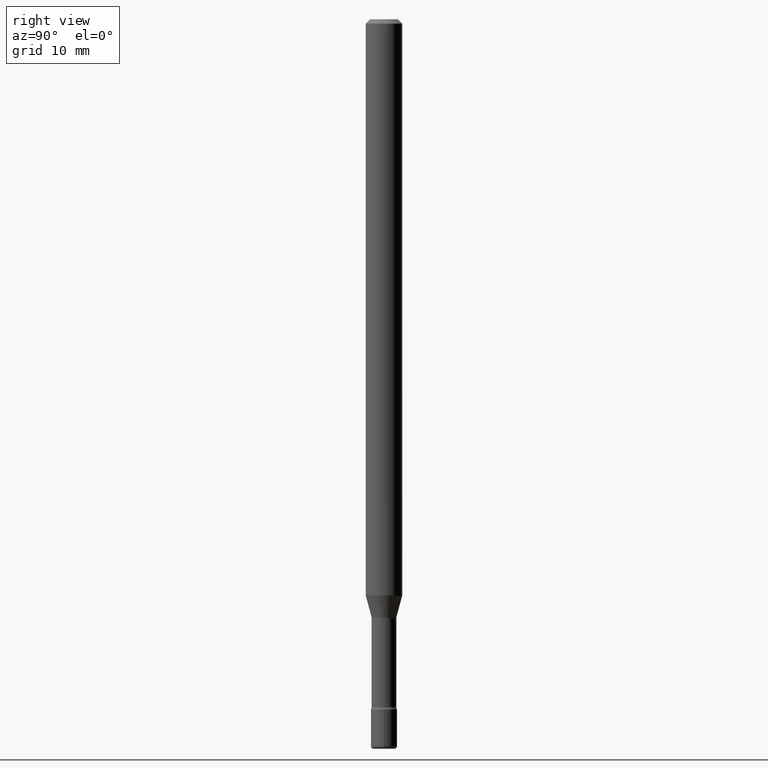
[diagram: clean part render]
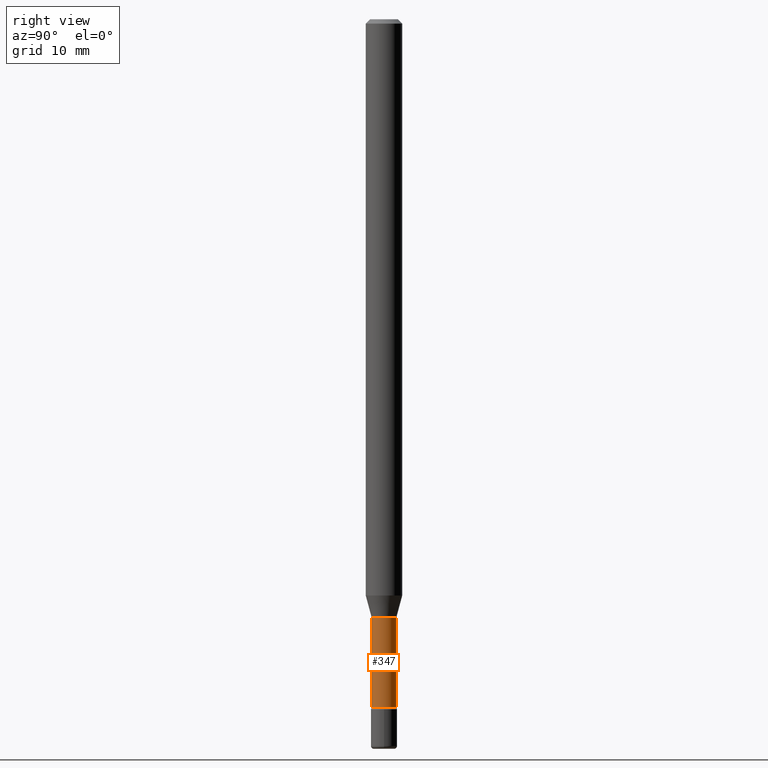
[diagram: same view with one face highlighted and labeled with its STEP entity id]
A machine part, right view. The second image highlights one B-rep face of the part: STEP entity #347.
In plain terms, the highlighted cylindrical surface (edge-blend (fillet) strip) has radius 1.0744 mm, axis along (-0, 0, 1).
Its self-contained STEP definition (entity closure, byte-faithful):
#6 = EDGE_CURVE ( 'NONE', #409, #531, #223, .T. ) ;
#20 = VECTOR ( 'NONE', #346, 39.37007874015748143 ) ;
#40 = VECTOR ( 'NONE', #274, 39.37007874015748143 ) ;
#53 = AXIS2_PLACEMENT_3D ( 'NONE', #280, #101, #501 ) ;
#58 = CYLINDRICAL_SURFACE ( 'NONE', #53, 0.04229999999999999732 ) ;
#73 = CARTESIAN_POINT ( 'NONE',  ( -2.953793212660789115E-16, -0.04230000000000716520, -2.051974787463811012 ) ) ;
#88 = CARTESIAN_POINT ( 'NONE',  ( -2.953793212661290535E-16, -0.04229999999999999732, 6.257699263891009512E-16 ) ) ;
#101 = DIRECTION ( 'NONE',  ( -2.445355446703953584E-29, 3.491643676072220337E-15, 1.000000000000000000 ) ) ;
#114 = EDGE_CURVE ( 'NONE', #256, #531, #395, .T. ) ;
#116 = DIRECTION ( 'NONE',  ( -6.982962677686266711E-15, -1.000000000000000000, 6.458269488567998169E-15 ) ) ;
#146 = FACE_OUTER_BOUND ( 'NONE', #406, .T. ) ;
#152 = ORIENTED_EDGE ( 'NONE', *, *, #6, .T. ) ;
#223 = LINE ( 'NONE', #407, #40 ) ;
#229 = DIRECTION ( 'NONE',  ( -2.445355446703953584E-29, 3.491643676072220337E-15, 1.000000000000000000 ) ) ;
#249 = LINE ( 'NONE', #88, #20 ) ;
#255 = CARTESIAN_POINT ( 'NONE',  ( 3.005595772265800451E-16, 0.04229999999999283639, -2.051974787463811456 ) ) ;
#256 = VERTEX_POINT ( 'NONE', #73 ) ;
#258 = EDGE_CURVE ( 'NONE', #499, #256, #249, .T. ) ;
#261 = AXIS2_PLACEMENT_3D ( 'NONE', #534, #229, #116 ) ;
#265 = ORIENTED_EDGE ( 'NONE', *, *, #258, .F. ) ;
#274 = DIRECTION ( 'NONE',  ( -2.445355446703953584E-29, 3.491643676072220337E-15, 1.000000000000000000 ) ) ;
#280 = CARTESIAN_POINT ( 'NONE',  ( -1.169113584055446105E-44, 1.669184350826100908E-30, 4.780733988912460139E-16 ) ) ;
#282 = ORIENTED_EDGE ( 'NONE', *, *, #355, .T. ) ;
#317 = AXIS2_PLACEMENT_3D ( 'NONE', #465, #337, #415 ) ;
#337 = DIRECTION ( 'NONE',  ( -2.445355446703953584E-29, 3.491643676072220337E-15, 1.000000000000000000 ) ) ;
#346 = DIRECTION ( 'NONE',  ( -2.445355446703953584E-29, 3.491643676072220337E-15, 1.000000000000000000 ) ) ;
#347 = ADVANCED_FACE ( 'NONE', ( #146 ), #58, .T. ) ;
#355 = EDGE_CURVE ( 'NONE', #499, #409, #571, .T. ) ;
#360 = CARTESIAN_POINT ( 'NONE',  ( 3.101519041593414751E-16, 0.04229999999999176780, -2.356414547187247521 ) ) ;
#395 = CIRCLE ( 'NONE', #317, 0.04229999999999999732 ) ;
#406 = EDGE_LOOP ( 'NONE', ( #282, #152, #533, #265 ) ) ;
#407 = CARTESIAN_POINT ( 'NONE',  ( 3.005595772265223103E-16, 0.04229999999999999732, 3.303768713933911753E-16 ) ) ;
#409 = VERTEX_POINT ( 'NONE', #360 ) ;
#415 = DIRECTION ( 'NONE',  ( -6.982962677686266711E-15, -1.000000000000000000, 6.458269488567998169E-15 ) ) ;
#465 = CARTESIAN_POINT ( 'NONE',  ( 5.017807723023819090E-29, -7.164764790107654286E-15, -2.051974787463811456 ) ) ;
#486 = CARTESIAN_POINT ( 'NONE',  ( -2.953793212660714173E-16, -0.04230000000000822685, -2.356414547187247077 ) ) ;
#499 = VERTEX_POINT ( 'NONE', #486 ) ;
#501 = DIRECTION ( 'NONE',  ( -6.982962677686266711E-15, -1.000000000000000000, 3.491643676072218759E-15 ) ) ;
#531 = VERTEX_POINT ( 'NONE', #255 ) ;
#533 = ORIENTED_EDGE ( 'NONE', *, *, #114, .F. ) ;
#534 = CARTESIAN_POINT ( 'NONE',  ( 5.762271147656765204E-29, -8.227759951890936880E-15, -2.356414547187247077 ) ) ;
#571 = CIRCLE ( 'NONE', #261, 0.04229999999999999732 ) ;